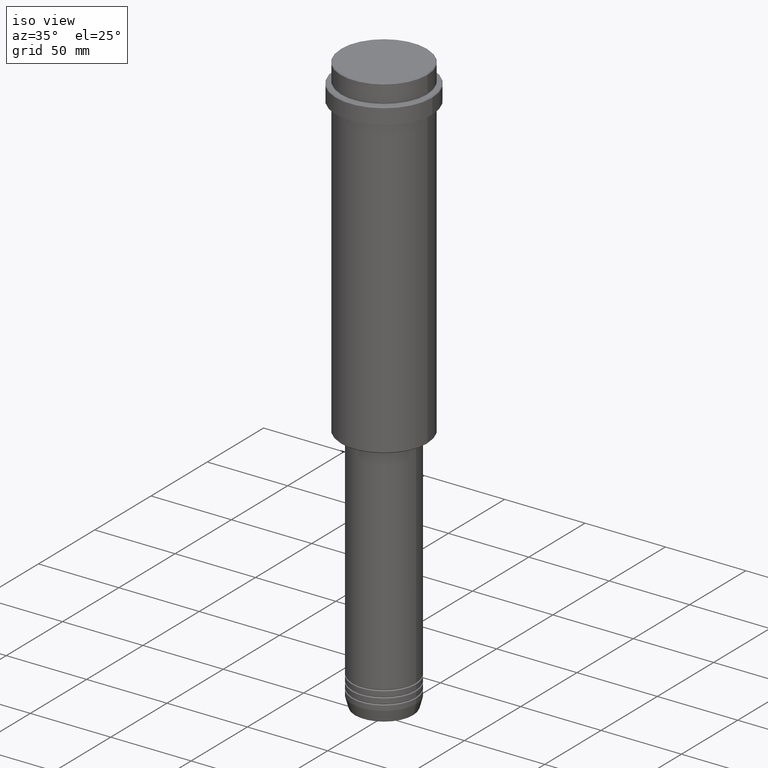
[diagram: clean part render]
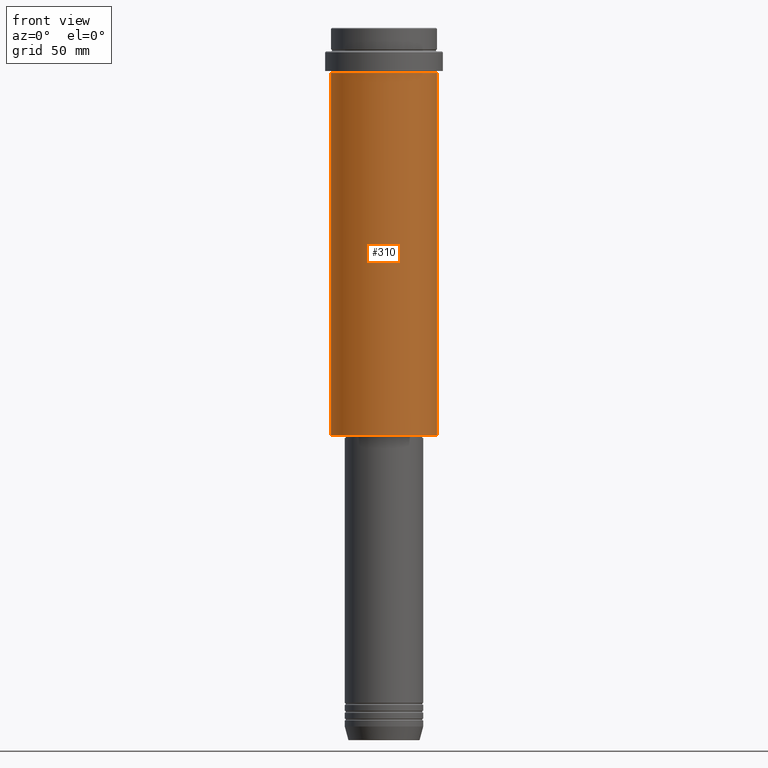
[diagram: tour spotlight — one face highlighted and labeled with its STEP entity id]
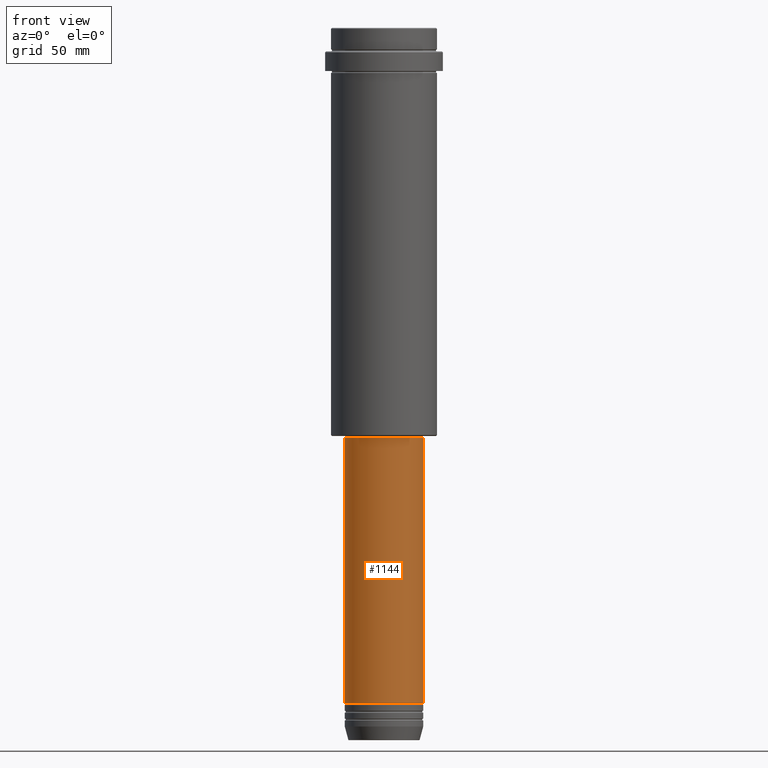
[diagram: tour spotlight — one face highlighted and labeled with its STEP entity id]
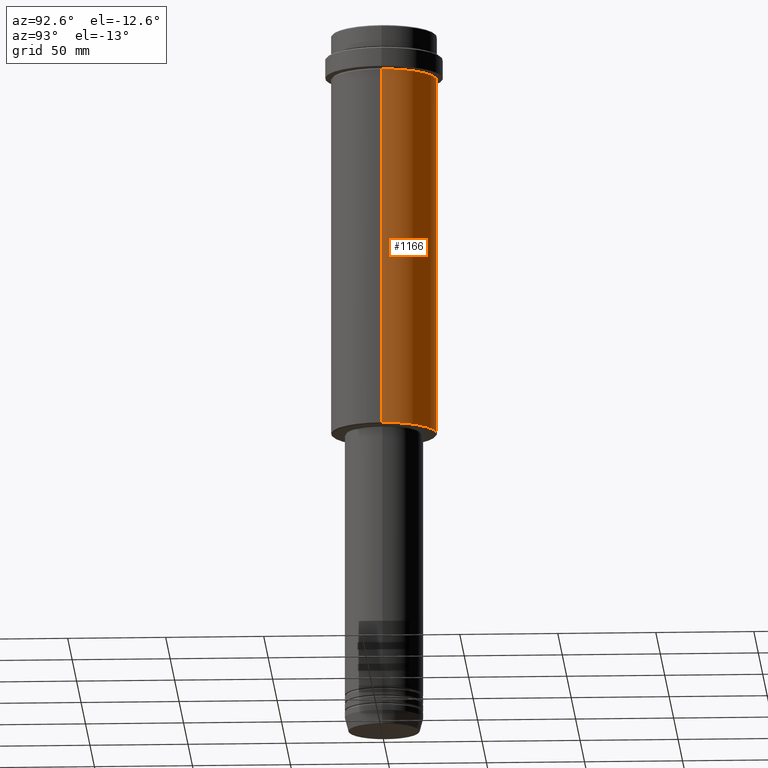
[diagram: tour spotlight — one face highlighted and labeled with its STEP entity id]
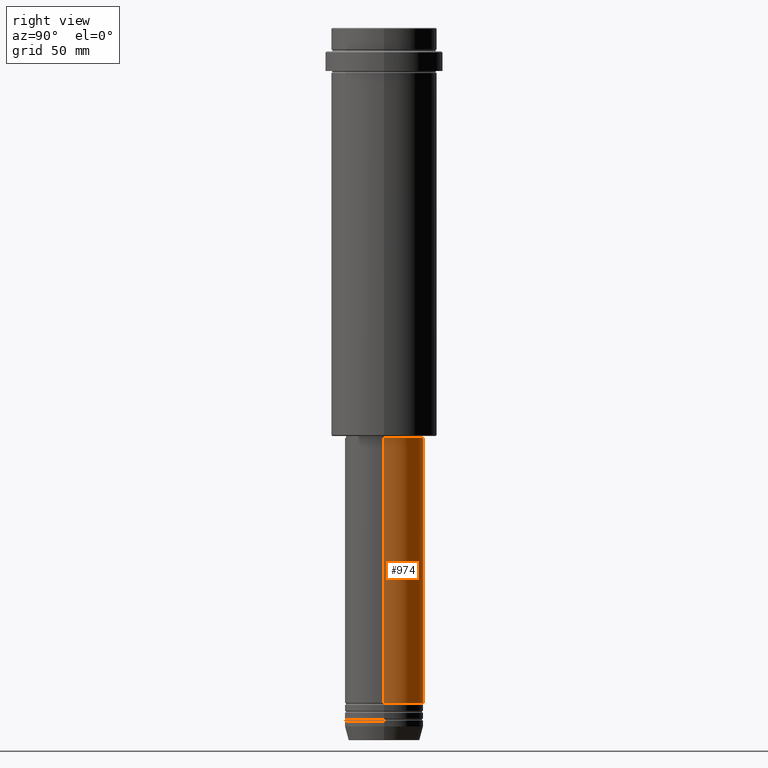
[diagram: tour spotlight — one face highlighted and labeled with its STEP entity id]
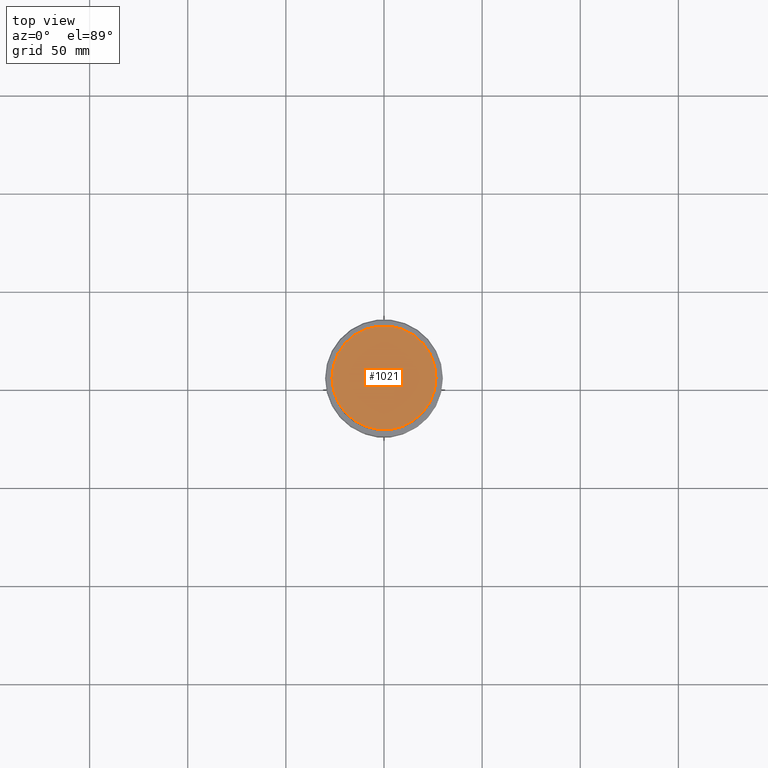
[diagram: tour spotlight — one face highlighted and labeled with its STEP entity id]
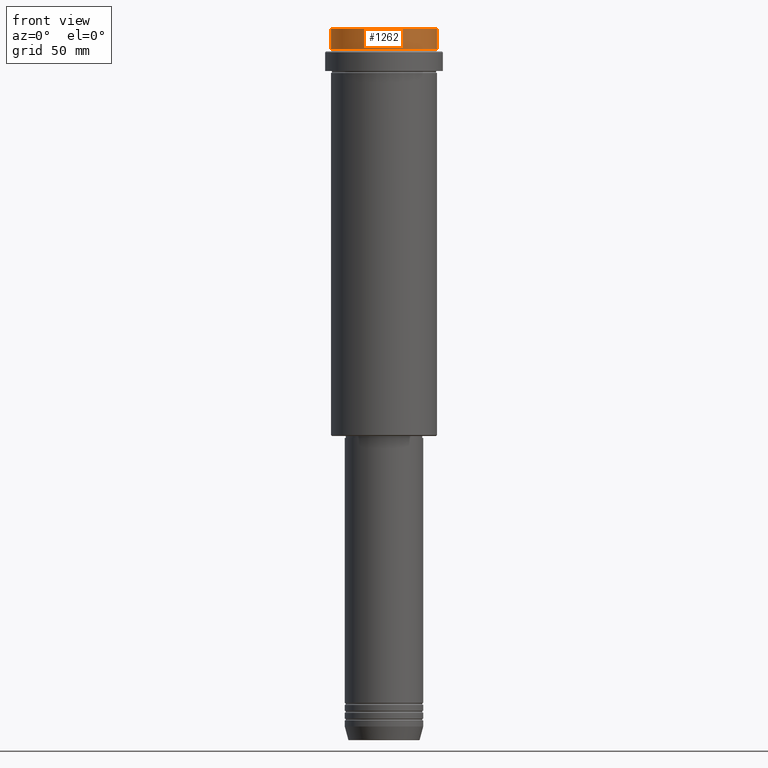
[diagram: tour spotlight — one face highlighted and labeled with its STEP entity id]
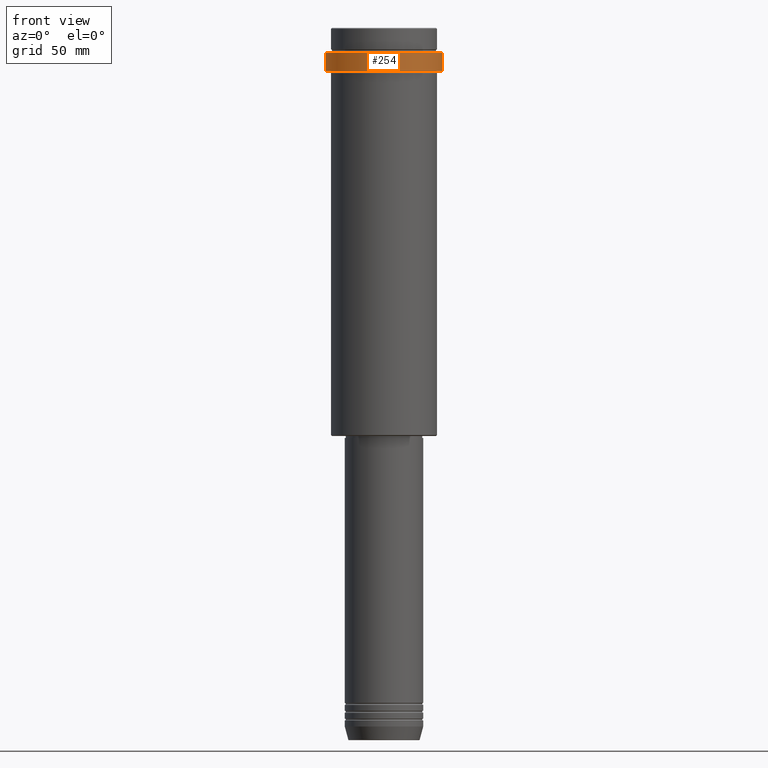
[diagram: tour spotlight — one face highlighted and labeled with its STEP entity id]
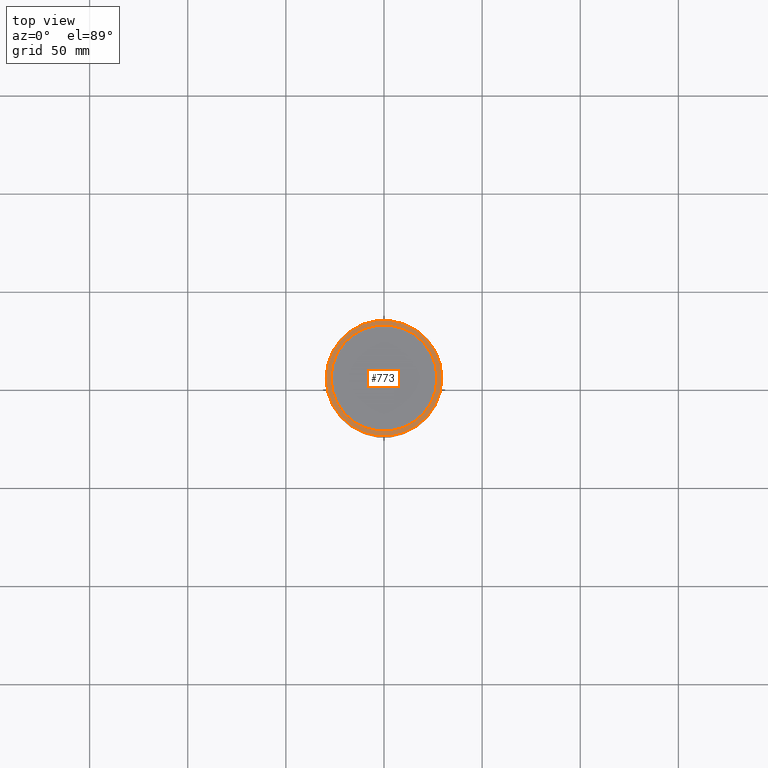
[diagram: tour spotlight — one face highlighted and labeled with its STEP entity id]
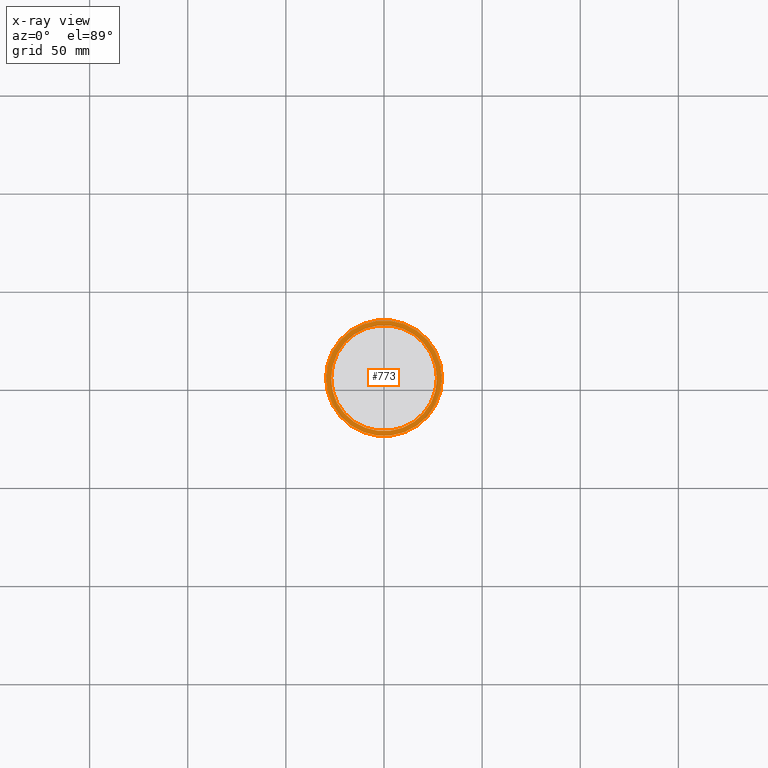
[diagram: x-ray of the same camera — body ghosted, this tour face saturated]
A machine part: a face-by-face anatomy tour. The part has 52 B-rep faces; the first image is the clean iso view, then the 8 largest visible faces are spotlighted one at a time (largest first), each with its STEP entity span.

Face 1 — front view, entity #310. In plain terms, the highlighted cylindrical surface (partial cylindrical patch) has radius 27 mm, axis along (-0, -0, 1).
Definition (entity closure, byte-faithful):
#24 = DIRECTION ( 'NONE',  ( -0.000000000000000000, -0.000000000000000000, 1.000000000000000000 ) ) ;
#105 = DIRECTION ( 'NONE',  ( 1.000000000000000000, 0.000000000000000000, 0.000000000000000000 ) ) ;
#113 = AXIS2_PLACEMENT_3D ( 'NONE', #471, #358, #794 ) ;
#123 = EDGE_CURVE ( 'NONE', #333, #308, #1271, .T. ) ;
#151 = CIRCLE ( 'NONE', #113, 26.99999999999999645 ) ;
#219 = CARTESIAN_POINT ( 'NONE',  ( -26.99999999999999645, 3.306546357697853339E-15, -23.00000000000000000 ) ) ;
#237 = EDGE_LOOP ( 'NONE', ( #294, #567, #1272, #1083 ) ) ;
#270 = DIRECTION ( 'NONE',  ( -1.000000000000000000, 0.000000000000000000, 0.000000000000000000 ) ) ;
#275 = CYLINDRICAL_SURFACE ( 'NONE', #732, 26.99999999999999645 ) ;
#294 = ORIENTED_EDGE ( 'NONE', *, *, #948, .F. ) ;
#308 = VERTEX_POINT ( 'NONE', #1336 ) ;
#310 = ADVANCED_FACE ( 'NONE', ( #388 ), #275, .T. ) ;
#328 = EDGE_CURVE ( 'NONE', #596, #333, #1091, .T. ) ;
#333 = VERTEX_POINT ( 'NONE', #364 ) ;
#347 = EDGE_CURVE ( 'NONE', #996, #308, #151, .T. ) ;
#358 = DIRECTION ( 'NONE',  ( -0.000000000000000000, -0.000000000000000000, 1.000000000000000000 ) ) ;
#364 = CARTESIAN_POINT ( 'NONE',  ( 26.99999999999999645, 0.000000000000000000, -207.5000000000001421 ) ) ;
#388 = FACE_OUTER_BOUND ( 'NONE', #237, .T. ) ;
#452 = CARTESIAN_POINT ( 'NONE',  ( -26.99999999999999645, 3.306546357697853339E-15, -207.5000000000001421 ) ) ;
#471 = CARTESIAN_POINT ( 'NONE',  ( 0.000000000000000000, 0.000000000000000000, -23.00000000000000000 ) ) ;
#567 = ORIENTED_EDGE ( 'NONE', *, *, #328, .T. ) ;
#596 = VERTEX_POINT ( 'NONE', #452 ) ;
#610 = CARTESIAN_POINT ( 'NONE',  ( 0.000000000000000000, 0.000000000000000000, 0.000000000000000000 ) ) ;
#642 = LINE ( 'NONE', #879, #1335 ) ;
#716 = CARTESIAN_POINT ( 'NONE',  ( 26.99999999999999645, 0.000000000000000000, 0.000000000000000000 ) ) ;
#732 = AXIS2_PLACEMENT_3D ( 'NONE', #610, #780, #105 ) ;
#780 = DIRECTION ( 'NONE',  ( -0.000000000000000000, -0.000000000000000000, 1.000000000000000000 ) ) ;
#794 = DIRECTION ( 'NONE',  ( 1.000000000000000000, 0.000000000000000000, 0.000000000000000000 ) ) ;
#816 = CARTESIAN_POINT ( 'NONE',  ( 0.000000000000000000, 0.000000000000000000, -207.5000000000001421 ) ) ;
#862 = DIRECTION ( 'NONE',  ( -0.000000000000000000, -0.000000000000000000, 1.000000000000000000 ) ) ;
#879 = CARTESIAN_POINT ( 'NONE',  ( -26.99999999999999645, 3.306546357697853339E-15, 0.000000000000000000 ) ) ;
#948 = EDGE_CURVE ( 'NONE', #596, #996, #642, .T. ) ;
#979 = AXIS2_PLACEMENT_3D ( 'NONE', #816, #24, #270 ) ;
#996 = VERTEX_POINT ( 'NONE', #219 ) ;
#1083 = ORIENTED_EDGE ( 'NONE', *, *, #347, .F. ) ;
#1091 = CIRCLE ( 'NONE', #979, 26.99999999999999645 ) ;
#1114 = VECTOR ( 'NONE', #1140, 1000.000000000000000 ) ;
#1140 = DIRECTION ( 'NONE',  ( -0.000000000000000000, -0.000000000000000000, 1.000000000000000000 ) ) ;
#1271 = LINE ( 'NONE', #716, #1114 ) ;
#1272 = ORIENTED_EDGE ( 'NONE', *, *, #123, .T. ) ;
#1335 = VECTOR ( 'NONE', #862, 1000.000000000000000 ) ;
#1336 = CARTESIAN_POINT ( 'NONE',  ( 26.99999999999999645, 0.000000000000000000, -23.00000000000000000 ) ) ;

Face 2 — front view, entity #1144. In plain terms, the highlighted cylindrical surface (partial cylindrical patch) has radius 20 mm, axis along (-0, -0, 1).
Definition (entity closure, byte-faithful):
#10 = EDGE_CURVE ( 'NONE', #995, #101, #45, .T. ) ;
#32 = DIRECTION ( 'NONE',  ( 1.000000000000000000, 0.000000000000000000, 0.000000000000000000 ) ) ;
#45 = CIRCLE ( 'NONE', #404, 20.00000000000000000 ) ;
#94 = LINE ( 'NONE', #548, #734 ) ;
#101 = VERTEX_POINT ( 'NONE', #502 ) ;
#122 = DIRECTION ( 'NONE',  ( 1.000000000000000000, 0.000000000000000000, 0.000000000000000000 ) ) ;
#144 = CYLINDRICAL_SURFACE ( 'NONE', #1251, 19.99999999999999645 ) ;
#256 = VECTOR ( 'NONE', #1284, 1000.000000000000000 ) ;
#340 = VERTEX_POINT ( 'NONE', #800 ) ;
#350 = DIRECTION ( 'NONE',  ( -0.000000000000000000, -0.000000000000000000, 1.000000000000000000 ) ) ;
#401 = CARTESIAN_POINT ( 'NONE',  ( 0.000000000000000000, 0.000000000000000000, 0.000000000000000000 ) ) ;
#404 = AXIS2_PLACEMENT_3D ( 'NONE', #579, #686, #32 ) ;
#502 = CARTESIAN_POINT ( 'NONE',  ( 20.00000000000000000, 0.000000000000000000, -343.9999999999999432 ) ) ;
#534 = EDGE_CURVE ( 'NONE', #928, #340, #851, .T. ) ;
#548 = CARTESIAN_POINT ( 'NONE',  ( 19.99999999999999645, 0.000000000000000000, 0.000000000000000000 ) ) ;
#579 = CARTESIAN_POINT ( 'NONE',  ( 0.000000000000000000, 0.000000000000000000, -343.9999999999999432 ) ) ;
#633 = EDGE_CURVE ( 'NONE', #101, #340, #94, .T. ) ;
#680 = CARTESIAN_POINT ( 'NONE',  ( 0.000000000000000000, 0.000000000000000000, -208.9999999999999716 ) ) ;
#682 = ORIENTED_EDGE ( 'NONE', *, *, #534, .F. ) ;
#685 = CARTESIAN_POINT ( 'NONE',  ( -20.00000000000000000, 2.449293598294706513E-15, -343.9999999999999432 ) ) ;
#686 = DIRECTION ( 'NONE',  ( -0.000000000000000000, -0.000000000000000000, 1.000000000000000000 ) ) ;
#699 = EDGE_LOOP ( 'NONE', ( #717, #1090, #1370, #682 ) ) ;
#702 = DIRECTION ( 'NONE',  ( -0.000000000000000000, -0.000000000000000000, 1.000000000000000000 ) ) ;
#717 = ORIENTED_EDGE ( 'NONE', *, *, #852, .F. ) ;
#719 = DIRECTION ( 'NONE',  ( 1.000000000000000000, 0.000000000000000000, 0.000000000000000000 ) ) ;
#734 = VECTOR ( 'NONE', #350, 1000.000000000000000 ) ;
#753 = CARTESIAN_POINT ( 'NONE',  ( -19.99999999999999645, 2.449293598294706119E-15, -208.9999999999999716 ) ) ;
#800 = CARTESIAN_POINT ( 'NONE',  ( 19.99999999999999645, 0.000000000000000000, -208.9999999999999716 ) ) ;
#825 = FACE_OUTER_BOUND ( 'NONE', #699, .T. ) ;
#851 = CIRCLE ( 'NONE', #1116, 19.99999999999999645 ) ;
#852 = EDGE_CURVE ( 'NONE', #995, #928, #1276, .T. ) ;
#856 = CARTESIAN_POINT ( 'NONE',  ( -19.99999999999999645, 2.449293598294706119E-15, 0.000000000000000000 ) ) ;
#928 = VERTEX_POINT ( 'NONE', #753 ) ;
#995 = VERTEX_POINT ( 'NONE', #685 ) ;
#1090 = ORIENTED_EDGE ( 'NONE', *, *, #10, .T. ) ;
#1116 = AXIS2_PLACEMENT_3D ( 'NONE', #680, #1295, #122 ) ;
#1144 = ADVANCED_FACE ( 'NONE', ( #825 ), #144, .T. ) ;
#1251 = AXIS2_PLACEMENT_3D ( 'NONE', #401, #702, #719 ) ;
#1276 = LINE ( 'NONE', #856, #256 ) ;
#1284 = DIRECTION ( 'NONE',  ( -0.000000000000000000, -0.000000000000000000, 1.000000000000000000 ) ) ;
#1295 = DIRECTION ( 'NONE',  ( -0.000000000000000000, -0.000000000000000000, 1.000000000000000000 ) ) ;
#1370 = ORIENTED_EDGE ( 'NONE', *, *, #633, .T. ) ;

Face 3 — auxiliary view, entity #1166. In plain terms, the highlighted cylindrical surface (partial cylindrical patch) has radius 27 mm, axis along (-0, -0, 1).
Definition (entity closure, byte-faithful):
#69 = AXIS2_PLACEMENT_3D ( 'NONE', #281, #946, #1350 ) ;
#123 = EDGE_CURVE ( 'NONE', #333, #308, #1271, .T. ) ;
#219 = CARTESIAN_POINT ( 'NONE',  ( -26.99999999999999645, 3.306546357697853339E-15, -23.00000000000000000 ) ) ;
#281 = CARTESIAN_POINT ( 'NONE',  ( 0.000000000000000000, 0.000000000000000000, 0.000000000000000000 ) ) ;
#308 = VERTEX_POINT ( 'NONE', #1336 ) ;
#333 = VERTEX_POINT ( 'NONE', #364 ) ;
#359 = EDGE_CURVE ( 'NONE', #308, #996, #537, .T. ) ;
#364 = CARTESIAN_POINT ( 'NONE',  ( 26.99999999999999645, 0.000000000000000000, -207.5000000000001421 ) ) ;
#452 = CARTESIAN_POINT ( 'NONE',  ( -26.99999999999999645, 3.306546357697853339E-15, -207.5000000000001421 ) ) ;
#461 = DIRECTION ( 'NONE',  ( -0.000000000000000000, -0.000000000000000000, 1.000000000000000000 ) ) ;
#537 = CIRCLE ( 'NONE', #1308, 26.99999999999999645 ) ;
#560 = AXIS2_PLACEMENT_3D ( 'NONE', #788, #573, #871 ) ;
#573 = DIRECTION ( 'NONE',  ( -0.000000000000000000, -0.000000000000000000, 1.000000000000000000 ) ) ;
#596 = VERTEX_POINT ( 'NONE', #452 ) ;
#609 = ORIENTED_EDGE ( 'NONE', *, *, #948, .T. ) ;
#624 = EDGE_CURVE ( 'NONE', #333, #596, #1155, .T. ) ;
#642 = LINE ( 'NONE', #879, #1335 ) ;
#716 = CARTESIAN_POINT ( 'NONE',  ( 26.99999999999999645, 0.000000000000000000, 0.000000000000000000 ) ) ;
#744 = EDGE_LOOP ( 'NONE', ( #777, #609, #1096, #926 ) ) ;
#777 = ORIENTED_EDGE ( 'NONE', *, *, #624, .T. ) ;
#788 = CARTESIAN_POINT ( 'NONE',  ( 0.000000000000000000, 0.000000000000000000, -207.5000000000001421 ) ) ;
#862 = DIRECTION ( 'NONE',  ( -0.000000000000000000, -0.000000000000000000, 1.000000000000000000 ) ) ;
#871 = DIRECTION ( 'NONE',  ( -1.000000000000000000, 0.000000000000000000, 0.000000000000000000 ) ) ;
#879 = CARTESIAN_POINT ( 'NONE',  ( -26.99999999999999645, 3.306546357697853339E-15, 0.000000000000000000 ) ) ;
#926 = ORIENTED_EDGE ( 'NONE', *, *, #123, .F. ) ;
#930 = CYLINDRICAL_SURFACE ( 'NONE', #69, 26.99999999999999645 ) ;
#946 = DIRECTION ( 'NONE',  ( -0.000000000000000000, -0.000000000000000000, 1.000000000000000000 ) ) ;
#948 = EDGE_CURVE ( 'NONE', #596, #996, #642, .T. ) ;
#990 = CARTESIAN_POINT ( 'NONE',  ( 0.000000000000000000, 0.000000000000000000, -23.00000000000000000 ) ) ;
#996 = VERTEX_POINT ( 'NONE', #219 ) ;
#1096 = ORIENTED_EDGE ( 'NONE', *, *, #359, .F. ) ;
#1102 = DIRECTION ( 'NONE',  ( 1.000000000000000000, 0.000000000000000000, 0.000000000000000000 ) ) ;
#1114 = VECTOR ( 'NONE', #1140, 1000.000000000000000 ) ;
#1140 = DIRECTION ( 'NONE',  ( -0.000000000000000000, -0.000000000000000000, 1.000000000000000000 ) ) ;
#1155 = CIRCLE ( 'NONE', #560, 26.99999999999999645 ) ;
#1166 = ADVANCED_FACE ( 'NONE', ( #1242 ), #930, .T. ) ;
#1242 = FACE_OUTER_BOUND ( 'NONE', #744, .T. ) ;
#1271 = LINE ( 'NONE', #716, #1114 ) ;
#1308 = AXIS2_PLACEMENT_3D ( 'NONE', #990, #461, #1102 ) ;
#1335 = VECTOR ( 'NONE', #862, 1000.000000000000000 ) ;
#1336 = CARTESIAN_POINT ( 'NONE',  ( 26.99999999999999645, 0.000000000000000000, -23.00000000000000000 ) ) ;
#1350 = DIRECTION ( 'NONE',  ( 1.000000000000000000, 0.000000000000000000, 0.000000000000000000 ) ) ;

Face 4 — right view, entity #974. In plain terms, the highlighted cylindrical surface (partial cylindrical patch) has radius 20 mm, axis along (-0, -0, 1).
Definition (entity closure, byte-faithful):
#94 = LINE ( 'NONE', #548, #734 ) ;
#101 = VERTEX_POINT ( 'NONE', #502 ) ;
#217 = ORIENTED_EDGE ( 'NONE', *, *, #582, .T. ) ;
#224 = DIRECTION ( 'NONE',  ( 1.000000000000000000, 0.000000000000000000, 0.000000000000000000 ) ) ;
#245 = EDGE_LOOP ( 'NONE', ( #217, #1258, #487, #1297 ) ) ;
#256 = VECTOR ( 'NONE', #1284, 1000.000000000000000 ) ;
#340 = VERTEX_POINT ( 'NONE', #800 ) ;
#348 = CARTESIAN_POINT ( 'NONE',  ( 0.000000000000000000, 0.000000000000000000, 0.000000000000000000 ) ) ;
#350 = DIRECTION ( 'NONE',  ( -0.000000000000000000, -0.000000000000000000, 1.000000000000000000 ) ) ;
#370 = DIRECTION ( 'NONE',  ( -0.000000000000000000, -0.000000000000000000, 1.000000000000000000 ) ) ;
#424 = AXIS2_PLACEMENT_3D ( 'NONE', #1082, #580, #993 ) ;
#455 = DIRECTION ( 'NONE',  ( -0.000000000000000000, -0.000000000000000000, 1.000000000000000000 ) ) ;
#487 = ORIENTED_EDGE ( 'NONE', *, *, #1395, .F. ) ;
#502 = CARTESIAN_POINT ( 'NONE',  ( 20.00000000000000000, 0.000000000000000000, -343.9999999999999432 ) ) ;
#548 = CARTESIAN_POINT ( 'NONE',  ( 19.99999999999999645, 0.000000000000000000, 0.000000000000000000 ) ) ;
#580 = DIRECTION ( 'NONE',  ( -0.000000000000000000, -0.000000000000000000, 1.000000000000000000 ) ) ;
#582 = EDGE_CURVE ( 'NONE', #101, #995, #630, .T. ) ;
#588 = CARTESIAN_POINT ( 'NONE',  ( 0.000000000000000000, 0.000000000000000000, -208.9999999999999716 ) ) ;
#630 = CIRCLE ( 'NONE', #424, 20.00000000000000000 ) ;
#633 = EDGE_CURVE ( 'NONE', #101, #340, #94, .T. ) ;
#683 = DIRECTION ( 'NONE',  ( 1.000000000000000000, 0.000000000000000000, 0.000000000000000000 ) ) ;
#685 = CARTESIAN_POINT ( 'NONE',  ( -20.00000000000000000, 2.449293598294706513E-15, -343.9999999999999432 ) ) ;
#734 = VECTOR ( 'NONE', #350, 1000.000000000000000 ) ;
#741 = CIRCLE ( 'NONE', #904, 19.99999999999999645 ) ;
#753 = CARTESIAN_POINT ( 'NONE',  ( -19.99999999999999645, 2.449293598294706119E-15, -208.9999999999999716 ) ) ;
#800 = CARTESIAN_POINT ( 'NONE',  ( 19.99999999999999645, 0.000000000000000000, -208.9999999999999716 ) ) ;
#852 = EDGE_CURVE ( 'NONE', #995, #928, #1276, .T. ) ;
#856 = CARTESIAN_POINT ( 'NONE',  ( -19.99999999999999645, 2.449293598294706119E-15, 0.000000000000000000 ) ) ;
#904 = AXIS2_PLACEMENT_3D ( 'NONE', #588, #455, #683 ) ;
#928 = VERTEX_POINT ( 'NONE', #753 ) ;
#974 = ADVANCED_FACE ( 'NONE', ( #1305 ), #1299, .T. ) ;
#993 = DIRECTION ( 'NONE',  ( 1.000000000000000000, 0.000000000000000000, 0.000000000000000000 ) ) ;
#995 = VERTEX_POINT ( 'NONE', #685 ) ;
#1076 = AXIS2_PLACEMENT_3D ( 'NONE', #348, #370, #224 ) ;
#1082 = CARTESIAN_POINT ( 'NONE',  ( 0.000000000000000000, 0.000000000000000000, -343.9999999999999432 ) ) ;
#1258 = ORIENTED_EDGE ( 'NONE', *, *, #852, .T. ) ;
#1276 = LINE ( 'NONE', #856, #256 ) ;
#1284 = DIRECTION ( 'NONE',  ( -0.000000000000000000, -0.000000000000000000, 1.000000000000000000 ) ) ;
#1297 = ORIENTED_EDGE ( 'NONE', *, *, #633, .F. ) ;
#1299 = CYLINDRICAL_SURFACE ( 'NONE', #1076, 19.99999999999999645 ) ;
#1305 = FACE_OUTER_BOUND ( 'NONE', #245, .T. ) ;
#1395 = EDGE_CURVE ( 'NONE', #340, #928, #741, .T. ) ;

Face 5 — top view, entity #1021. In plain terms, the highlighted planar face has unit normal (0, -0, 1).
Definition (entity closure, byte-faithful):
#25 = CARTESIAN_POINT ( 'NONE',  ( 0.000000000000000000, 0.000000000000000000, 0.000000000000000000 ) ) ;
#47 = AXIS2_PLACEMENT_3D ( 'NONE', #25, #907, #1321 ) ;
#126 = CARTESIAN_POINT ( 'NONE',  ( 0.000000000000000000, 0.000000000000000000, 0.000000000000000000 ) ) ;
#239 = DIRECTION ( 'NONE',  ( -0.000000000000000000, -0.000000000000000000, 1.000000000000000000 ) ) ;
#330 = CARTESIAN_POINT ( 'NONE',  ( 0.000000000000000000, 0.000000000000000000, 0.000000000000000000 ) ) ;
#463 = CARTESIAN_POINT ( 'NONE',  ( 26.49999999999996803, 3.275930187719167580E-15, 0.000000000000000000 ) ) ;
#476 = CIRCLE ( 'NONE', #1029, 26.49999999999996803 ) ;
#535 = ORIENTED_EDGE ( 'NONE', *, *, #986, .T. ) ;
#584 = FACE_OUTER_BOUND ( 'NONE', #1005, .T. ) ;
#647 = EDGE_CURVE ( 'NONE', #985, #992, #1383, .T. ) ;
#657 = ORIENTED_EDGE ( 'NONE', *, *, #647, .T. ) ;
#766 = DIRECTION ( 'NONE',  ( -0.000000000000000000, -0.000000000000000000, 1.000000000000000000 ) ) ;
#784 = AXIS2_PLACEMENT_3D ( 'NONE', #330, #766, #1180 ) ;
#907 = DIRECTION ( 'NONE',  ( 0.000000000000000000, -0.000000000000000000, 1.000000000000000000 ) ) ;
#985 = VERTEX_POINT ( 'NONE', #1325 ) ;
#986 = EDGE_CURVE ( 'NONE', #992, #985, #476, .T. ) ;
#992 = VERTEX_POINT ( 'NONE', #463 ) ;
#1005 = EDGE_LOOP ( 'NONE', ( #657, #535 ) ) ;
#1021 = ADVANCED_FACE ( 'NONE', ( #584 ), #1214, .T. ) ;
#1029 = AXIS2_PLACEMENT_3D ( 'NONE', #126, #239, #1110 ) ;
#1110 = DIRECTION ( 'NONE',  ( 1.000000000000000000, 0.000000000000000000, 0.000000000000000000 ) ) ;
#1180 = DIRECTION ( 'NONE',  ( 1.000000000000000000, 0.000000000000000000, 0.000000000000000000 ) ) ;
#1214 = PLANE ( 'NONE',  #47 ) ;
#1321 = DIRECTION ( 'NONE',  ( 1.000000000000000000, 0.000000000000000000, 0.000000000000000000 ) ) ;
#1325 = CARTESIAN_POINT ( 'NONE',  ( -26.49999999999996803, 0.000000000000000000, 0.000000000000000000 ) ) ;
#1383 = CIRCLE ( 'NONE', #784, 26.49999999999996803 ) ;

Face 6 — front view, entity #1262. In plain terms, the highlighted cylindrical surface (partial cylindrical patch) has radius 27 mm, axis along (-0, -0, 1).
Definition (entity closure, byte-faithful):
#76 = VERTEX_POINT ( 'NONE', #1256 ) ;
#79 = CARTESIAN_POINT ( 'NONE',  ( 0.000000000000000000, 0.000000000000000000, -11.00000000000000178 ) ) ;
#85 = DIRECTION ( 'NONE',  ( -0.000000000000000000, -0.000000000000000000, 1.000000000000000000 ) ) ;
#111 = VECTOR ( 'NONE', #1239, 1000.000000000000000 ) ;
#203 = LINE ( 'NONE', #1068, #1137 ) ;
#290 = CARTESIAN_POINT ( 'NONE',  ( 26.99999999999999645, 0.000000000000000000, -0.5000000000000316414 ) ) ;
#322 = CARTESIAN_POINT ( 'NONE',  ( 26.99999999999999645, 0.000000000000000000, -11.00000000000000178 ) ) ;
#360 = CARTESIAN_POINT ( 'NONE',  ( -26.99999999999999645, 3.306546357697853339E-15, -0.5000000000000316414 ) ) ;
#394 = ORIENTED_EDGE ( 'NONE', *, *, #767, .T. ) ;
#478 = AXIS2_PLACEMENT_3D ( 'NONE', #867, #1177, #1372 ) ;
#532 = FACE_OUTER_BOUND ( 'NONE', #905, .T. ) ;
#562 = CIRCLE ( 'NONE', #901, 26.99999999999999645 ) ;
#571 = ORIENTED_EDGE ( 'NONE', *, *, #960, .F. ) ;
#574 = EDGE_CURVE ( 'NONE', #1206, #667, #1223, .T. ) ;
#667 = VERTEX_POINT ( 'NONE', #360 ) ;
#767 = EDGE_CURVE ( 'NONE', #1237, #1206, #836, .T. ) ;
#815 = ORIENTED_EDGE ( 'NONE', *, *, #574, .T. ) ;
#822 = CARTESIAN_POINT ( 'NONE',  ( 26.99999999999999645, 0.000000000000000000, 0.000000000000000000 ) ) ;
#836 = LINE ( 'NONE', #822, #111 ) ;
#860 = CYLINDRICAL_SURFACE ( 'NONE', #478, 26.99999999999999645 ) ;
#864 = DIRECTION ( 'NONE',  ( 1.000000000000000000, 0.000000000000000000, 0.000000000000000000 ) ) ;
#867 = CARTESIAN_POINT ( 'NONE',  ( 0.000000000000000000, 0.000000000000000000, 0.000000000000000000 ) ) ;
#901 = AXIS2_PLACEMENT_3D ( 'NONE', #79, #85, #951 ) ;
#905 = EDGE_LOOP ( 'NONE', ( #571, #1142, #394, #815 ) ) ;
#929 = EDGE_CURVE ( 'NONE', #76, #1237, #562, .T. ) ;
#951 = DIRECTION ( 'NONE',  ( 1.000000000000000000, 0.000000000000000000, 0.000000000000000000 ) ) ;
#960 = EDGE_CURVE ( 'NONE', #76, #667, #203, .T. ) ;
#964 = DIRECTION ( 'NONE',  ( -0.000000000000000000, -0.000000000000000000, 1.000000000000000000 ) ) ;
#1068 = CARTESIAN_POINT ( 'NONE',  ( -26.99999999999999645, 3.306546357697853339E-15, 0.000000000000000000 ) ) ;
#1137 = VECTOR ( 'NONE', #964, 1000.000000000000000 ) ;
#1142 = ORIENTED_EDGE ( 'NONE', *, *, #929, .T. ) ;
#1172 = DIRECTION ( 'NONE',  ( 0.000000000000000000, 0.000000000000000000, -1.000000000000000000 ) ) ;
#1177 = DIRECTION ( 'NONE',  ( -0.000000000000000000, -0.000000000000000000, 1.000000000000000000 ) ) ;
#1206 = VERTEX_POINT ( 'NONE', #290 ) ;
#1223 = CIRCLE ( 'NONE', #1409, 26.99999999999999645 ) ;
#1237 = VERTEX_POINT ( 'NONE', #322 ) ;
#1239 = DIRECTION ( 'NONE',  ( -0.000000000000000000, -0.000000000000000000, 1.000000000000000000 ) ) ;
#1256 = CARTESIAN_POINT ( 'NONE',  ( -26.99999999999999645, 3.306546357697853339E-15, -11.00000000000000178 ) ) ;
#1262 = ADVANCED_FACE ( 'NONE', ( #532 ), #860, .T. ) ;
#1288 = CARTESIAN_POINT ( 'NONE',  ( 0.000000000000000000, 0.000000000000000000, -0.5000000000000316414 ) ) ;
#1372 = DIRECTION ( 'NONE',  ( 1.000000000000000000, 0.000000000000000000, 0.000000000000000000 ) ) ;
#1409 = AXIS2_PLACEMENT_3D ( 'NONE', #1288, #1172, #864 ) ;

Face 7 — front view, entity #254. In plain terms, the highlighted cylindrical surface (partial cylindrical patch) has radius 30 mm, axis along (-0, -0, 1).
Definition (entity closure, byte-faithful):
#2 = ORIENTED_EDGE ( 'NONE', *, *, #53, .T. ) ;
#3 = DIRECTION ( 'NONE',  ( 1.000000000000000000, 0.000000000000000000, 0.000000000000000000 ) ) ;
#15 = ORIENTED_EDGE ( 'NONE', *, *, #1405, .T. ) ;
#53 = EDGE_CURVE ( 'NONE', #819, #1098, #251, .T. ) ;
#57 = EDGE_CURVE ( 'NONE', #966, #819, #621, .T. ) ;
#135 = CYLINDRICAL_SURFACE ( 'NONE', #1159, 30.00000000000000000 ) ;
#147 = LINE ( 'NONE', #501, #812 ) ;
#184 = DIRECTION ( 'NONE',  ( 1.000000000000000000, 0.000000000000000000, 0.000000000000000000 ) ) ;
#190 = EDGE_CURVE ( 'NONE', #1194, #1098, #147, .T. ) ;
#192 = DIRECTION ( 'NONE',  ( -0.000000000000000000, -0.000000000000000000, 1.000000000000000000 ) ) ;
#251 = CIRCLE ( 'NONE', #1267, 30.00000000000000000 ) ;
#254 = ADVANCED_FACE ( 'NONE', ( #840 ), #135, .T. ) ;
#306 = DIRECTION ( 'NONE',  ( 0.000000000000000000, 0.000000000000000000, -1.000000000000000000 ) ) ;
#366 = CARTESIAN_POINT ( 'NONE',  ( 0.000000000000000000, 0.000000000000000000, 0.000000000000000000 ) ) ;
#373 = DIRECTION ( 'NONE',  ( -0.000000000000000000, -0.000000000000000000, 1.000000000000000000 ) ) ;
#409 = AXIS2_PLACEMENT_3D ( 'NONE', #1213, #1006, #3 ) ;
#411 = CARTESIAN_POINT ( 'NONE',  ( -29.99999999999999645, 3.673940397442058389E-15, -22.00000000000000355 ) ) ;
#501 = CARTESIAN_POINT ( 'NONE',  ( -30.00000000000000000, 3.673940397442059178E-15, 0.000000000000000000 ) ) ;
#555 = EDGE_LOOP ( 'NONE', ( #950, #15, #1243, #2 ) ) ;
#621 = LINE ( 'NONE', #638, #899 ) ;
#627 = CARTESIAN_POINT ( 'NONE',  ( 30.00000000000000000, 0.000000000000000000, -12.50000000000006573 ) ) ;
#638 = CARTESIAN_POINT ( 'NONE',  ( 30.00000000000000000, 0.000000000000000000, 0.000000000000000000 ) ) ;
#743 = DIRECTION ( 'NONE',  ( -0.000000000000000000, -0.000000000000000000, 1.000000000000000000 ) ) ;
#812 = VECTOR ( 'NONE', #192, 1000.000000000000000 ) ;
#819 = VERTEX_POINT ( 'NONE', #627 ) ;
#840 = FACE_OUTER_BOUND ( 'NONE', #555, .T. ) ;
#899 = VECTOR ( 'NONE', #743, 1000.000000000000000 ) ;
#950 = ORIENTED_EDGE ( 'NONE', *, *, #190, .F. ) ;
#966 = VERTEX_POINT ( 'NONE', #1391 ) ;
#1006 = DIRECTION ( 'NONE',  ( -0.000000000000000000, -0.000000000000000000, 1.000000000000000000 ) ) ;
#1098 = VERTEX_POINT ( 'NONE', #1235 ) ;
#1159 = AXIS2_PLACEMENT_3D ( 'NONE', #366, #373, #1216 ) ;
#1194 = VERTEX_POINT ( 'NONE', #411 ) ;
#1203 = CIRCLE ( 'NONE', #409, 29.99999999999999645 ) ;
#1213 = CARTESIAN_POINT ( 'NONE',  ( 0.000000000000000000, 0.000000000000000000, -22.00000000000000355 ) ) ;
#1216 = DIRECTION ( 'NONE',  ( 1.000000000000000000, 0.000000000000000000, 0.000000000000000000 ) ) ;
#1235 = CARTESIAN_POINT ( 'NONE',  ( -30.00000000000000000, 3.673940397442059178E-15, -12.50000000000006573 ) ) ;
#1243 = ORIENTED_EDGE ( 'NONE', *, *, #57, .T. ) ;
#1248 = CARTESIAN_POINT ( 'NONE',  ( 0.000000000000000000, 0.000000000000000000, -12.50000000000006573 ) ) ;
#1267 = AXIS2_PLACEMENT_3D ( 'NONE', #1248, #306, #184 ) ;
#1391 = CARTESIAN_POINT ( 'NONE',  ( 29.99999999999999645, 0.000000000000000000, -22.00000000000000355 ) ) ;
#1405 = EDGE_CURVE ( 'NONE', #1194, #966, #1203, .T. ) ;

Face 8 — top view, entity #773. An x-ray twin of the same camera follows (body ghosted, this face saturated) — the face is partly hidden behind the body. In plain terms, the highlighted planar face has unit normal (0, -0, 1).
Definition (entity closure, byte-faithful):
#7 = DIRECTION ( 'NONE',  ( 0.000000000000000000, 0.000000000000000000, -1.000000000000000000 ) ) ;
#16 = FACE_BOUND ( 'NONE', #248, .T. ) ;
#64 = CIRCLE ( 'NONE', #782, 26.99999999999999289 ) ;
#67 = CARTESIAN_POINT ( 'NONE',  ( 0.000000000000000000, 0.000000000000000000, -12.00000000000000178 ) ) ;
#95 = ORIENTED_EDGE ( 'NONE', *, *, #703, .T. ) ;
#137 = DIRECTION ( 'NONE',  ( 1.000000000000000000, 0.000000000000000000, 0.000000000000000000 ) ) ;
#236 = CARTESIAN_POINT ( 'NONE',  ( -29.49999999999991473, 0.000000000000000000, -12.00000000000000178 ) ) ;
#240 = EDGE_CURVE ( 'NONE', #1319, #518, #516, .T. ) ;
#248 = EDGE_LOOP ( 'NONE', ( #1014, #1054 ) ) ;
#280 = CARTESIAN_POINT ( 'NONE',  ( 0.000000000000000000, 0.000000000000000000, -12.00000000000000178 ) ) ;
#313 = VERTEX_POINT ( 'NONE', #1129 ) ;
#319 = EDGE_CURVE ( 'NONE', #475, #313, #64, .T. ) ;
#344 = DIRECTION ( 'NONE',  ( 1.000000000000000000, 0.000000000000000000, 0.000000000000000000 ) ) ;
#369 = CARTESIAN_POINT ( 'NONE',  ( 0.000000000000000000, 0.000000000000000000, -12.00000000000000178 ) ) ;
#412 = CARTESIAN_POINT ( 'NONE',  ( 0.000000000000000000, 26.49999999999999645, -12.00000000000000178 ) ) ;
#462 = CARTESIAN_POINT ( 'NONE',  ( 26.99999999999999289, 0.000000000000000000, -12.00000000000000178 ) ) ;
#473 = PLANE ( 'NONE',  #715 ) ;
#475 = VERTEX_POINT ( 'NONE', #462 ) ;
#514 = DIRECTION ( 'NONE',  ( 0.000000000000000000, -0.000000000000000000, 1.000000000000000000 ) ) ;
#516 = CIRCLE ( 'NONE', #1331, 29.49999999999991473 ) ;
#518 = VERTEX_POINT ( 'NONE', #236 ) ;
#594 = EDGE_CURVE ( 'NONE', #313, #475, #1134, .T. ) ;
#655 = CARTESIAN_POINT ( 'NONE',  ( 0.000000000000000000, 0.000000000000000000, -12.00000000000000178 ) ) ;
#703 = EDGE_CURVE ( 'NONE', #518, #1319, #830, .T. ) ;
#704 = FACE_OUTER_BOUND ( 'NONE', #769, .T. ) ;
#715 = AXIS2_PLACEMENT_3D ( 'NONE', #412, #514, #843 ) ;
#769 = EDGE_LOOP ( 'NONE', ( #95, #1160 ) ) ;
#773 = ADVANCED_FACE ( 'NONE', ( #704, #16 ), #473, .T. ) ;
#782 = AXIS2_PLACEMENT_3D ( 'NONE', #369, #1349, #137 ) ;
#830 = CIRCLE ( 'NONE', #1250, 29.49999999999991473 ) ;
#833 = DIRECTION ( 'NONE',  ( 1.000000000000000000, 0.000000000000000000, 0.000000000000000000 ) ) ;
#843 = DIRECTION ( 'NONE',  ( 1.000000000000000000, 0.000000000000000000, 0.000000000000000000 ) ) ;
#1014 = ORIENTED_EDGE ( 'NONE', *, *, #319, .T. ) ;
#1054 = ORIENTED_EDGE ( 'NONE', *, *, #594, .T. ) ;
#1127 = DIRECTION ( 'NONE',  ( -0.000000000000000000, -0.000000000000000000, 1.000000000000000000 ) ) ;
#1129 = CARTESIAN_POINT ( 'NONE',  ( -26.99999999999999289, 3.306546357697852944E-15, -12.00000000000000178 ) ) ;
#1134 = CIRCLE ( 'NONE', #1289, 26.99999999999999289 ) ;
#1153 = DIRECTION ( 'NONE',  ( 1.000000000000000000, 0.000000000000000000, 0.000000000000000000 ) ) ;
#1160 = ORIENTED_EDGE ( 'NONE', *, *, #240, .T. ) ;
#1250 = AXIS2_PLACEMENT_3D ( 'NONE', #67, #1127, #1153 ) ;
#1289 = AXIS2_PLACEMENT_3D ( 'NONE', #655, #7, #344 ) ;
#1319 = VERTEX_POINT ( 'NONE', #1403 ) ;
#1331 = AXIS2_PLACEMENT_3D ( 'NONE', #280, #1365, #833 ) ;
#1349 = DIRECTION ( 'NONE',  ( 0.000000000000000000, 0.000000000000000000, -1.000000000000000000 ) ) ;
#1365 = DIRECTION ( 'NONE',  ( -0.000000000000000000, -0.000000000000000000, 1.000000000000000000 ) ) ;
#1403 = CARTESIAN_POINT ( 'NONE',  ( 29.49999999999991473, 3.643324227463370658E-15, -12.00000000000000178 ) ) ;